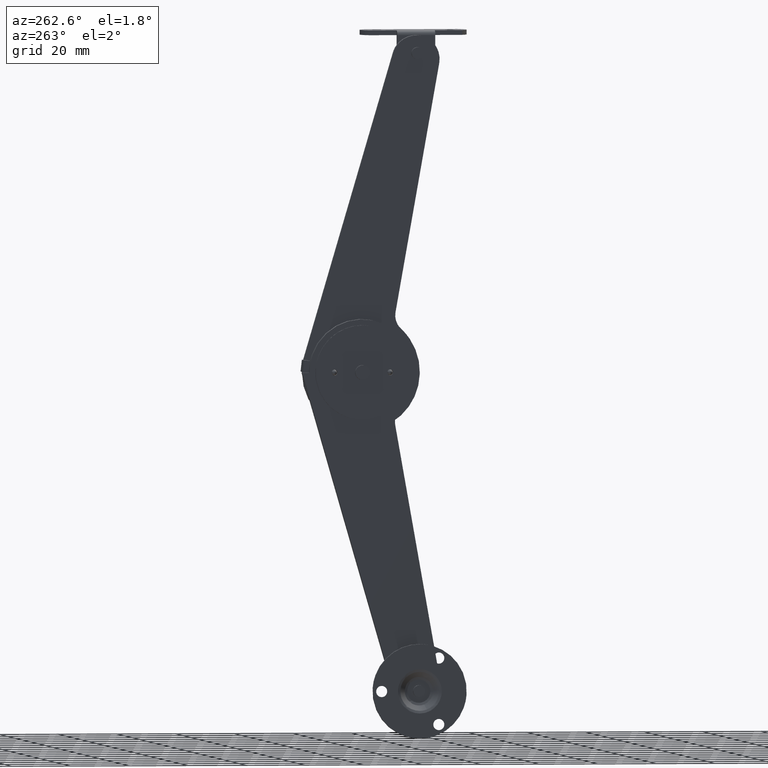
[diagram: clean part render]
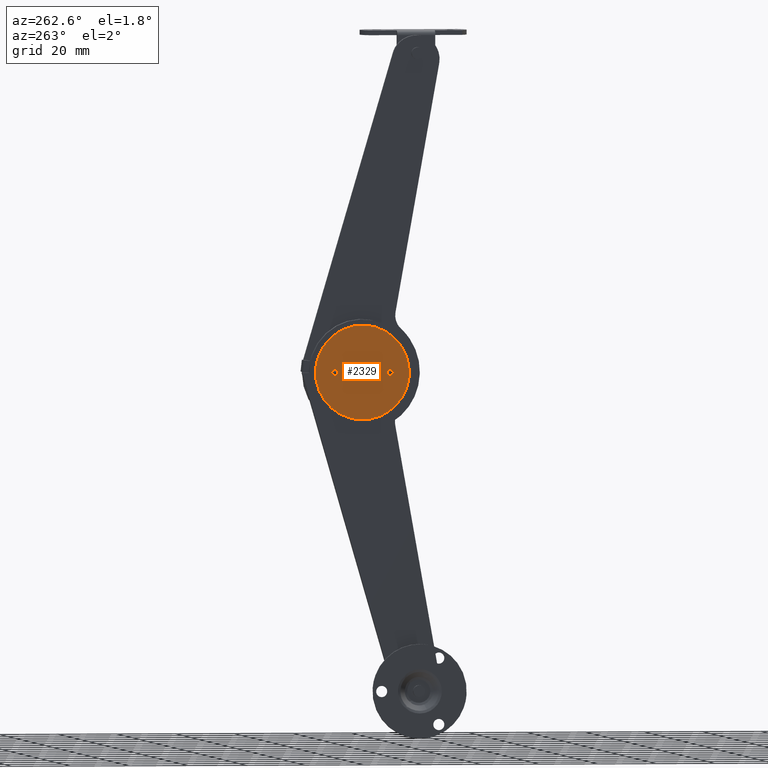
[diagram: same view with one face highlighted and labeled with its STEP entity id]
A machine part, auxiliary view. The second image highlights one B-rep face of the part: STEP entity #2329.
In plain terms, the highlighted face is a freeform B-spline surface patch.
Its self-contained STEP definition (entity closure, byte-faithful):
#1573=CARTESIAN_POINT('',(3.800003000000050,27.604370666721120,0.078459101500225));
#1574=VERTEX_POINT('',#1573);
#1580=CARTESIAN_POINT('',(3.800003000000050,28.601287999999951,0.999999999999975));
#1581=VERTEX_POINT('',#1580);
#1582=CARTESIAN_POINT('',(3.800003000000050,28.601287999999951,0.999999999999975));
#1583=CARTESIAN_POINT('',(3.800003000000050,27.676897519079755,0.999999999999975));
#1584=CARTESIAN_POINT('',(3.800003000000050,27.604370666721120,0.078459101500225));
#1592=(BOUNDED_CURVE()B_SPLINE_CURVE(2,(#1582,#1583,#1584),.UNSPECIFIED.,.F.,.U.)B_SPLINE_CURVE_WITH_KNOTS((3,3),(0.0,0.236331298647584),.UNSPECIFIED.)CURVE()GEOMETRIC_REPRESENTATION_ITEM()RATIONAL_B_SPLINE_CURVE((1.0,0.723120660930983,0.969723352028890))REPRESENTATION_ITEM(''));
#1593=EDGE_CURVE('',#1581,#1574,#1592,.T.);
#1595=CARTESIAN_POINT('',(3.800003000000050,29.598205333278781,-0.078459101500275));
#1596=VERTEX_POINT('',#1595);
#1597=CARTESIAN_POINT('',(3.800003000000050,29.598205333278781,-0.078459101500275));
#1598=CARTESIAN_POINT('',(3.800003000000050,29.601287999999954,-0.039290112806888));
#1599=CARTESIAN_POINT('',(3.800003000000050,29.601287999999951,-2.494522E-014));
#1600=CARTESIAN_POINT('',(3.800003000000050,29.601287999999951,0.999999999999975));
#1601=CARTESIAN_POINT('',(3.800003000000050,28.601287999999951,0.999999999999975));
#1609=(BOUNDED_CURVE()B_SPLINE_CURVE(2,(#1597,#1598,#1599,#1600,#1601),.UNSPECIFIED.,.F.,.U.)B_SPLINE_CURVE_WITH_KNOTS((3,2,3),(0.736331298647584,0.750000000000000,1.0),.UNSPECIFIED.)CURVE()GEOMETRIC_REPRESENTATION_ITEM()RATIONAL_B_SPLINE_CURVE((0.969723352028890,0.983986120255564,1.0,0.707106781186548,1.0))REPRESENTATION_ITEM(''));
#1610=EDGE_CURVE('',#1596,#1581,#1609,.T.);
#1686=CARTESIAN_POINT('',(3.800003000000050,28.601287999999951,-1.000000000000025));
#1687=VERTEX_POINT('',#1686);
#1688=CARTESIAN_POINT('',(3.800003000000050,28.601287999999951,-1.000000000000025));
#1689=CARTESIAN_POINT('',(3.800003000000049,29.525678480920142,-1.000000000000025));
#1690=CARTESIAN_POINT('',(3.800003000000050,29.598205333278781,-0.078459101500275));
#1698=(BOUNDED_CURVE()B_SPLINE_CURVE(2,(#1688,#1689,#1690),.UNSPECIFIED.,.F.,.U.)B_SPLINE_CURVE_WITH_KNOTS((3,3),(0.500000000000000,0.736331298647583),.UNSPECIFIED.)CURVE()GEOMETRIC_REPRESENTATION_ITEM()RATIONAL_B_SPLINE_CURVE((1.0,0.723120660930984,0.969723352028888))REPRESENTATION_ITEM(''));
#1699=EDGE_CURVE('',#1687,#1596,#1698,.T.);
#1701=CARTESIAN_POINT('',(3.800003000000050,27.604370666721120,0.078459101500225));
#1702=CARTESIAN_POINT('',(3.800003000000050,27.601287999999951,0.039290112806838));
#1703=CARTESIAN_POINT('',(3.800003000000050,27.601287999999951,-2.494522E-014));
#1704=CARTESIAN_POINT('',(3.800003000000050,27.601287999999958,-1.000000000000025));
#1705=CARTESIAN_POINT('',(3.800003000000050,28.601287999999951,-1.000000000000025));
#1713=(BOUNDED_CURVE()B_SPLINE_CURVE(2,(#1701,#1702,#1703,#1704,#1705),.UNSPECIFIED.,.F.,.U.)B_SPLINE_CURVE_WITH_KNOTS((3,2,3),(0.236331298647584,0.250000000000000,0.500000000000000),.UNSPECIFIED.)CURVE()GEOMETRIC_REPRESENTATION_ITEM()RATIONAL_B_SPLINE_CURVE((0.969723352028890,0.983986120255564,1.0,0.707106781186548,1.0))REPRESENTATION_ITEM(''));
#1714=EDGE_CURVE('',#1574,#1687,#1713,.T.);
#1761=CARTESIAN_POINT('',(3.800003000000050,10.594297526314310,0.118034235071934));
#1762=VERTEX_POINT('',#1761);
#1768=CARTESIAN_POINT('',(3.800003000000050,9.601288000000000,-1.000000000000026));
#1769=VERTEX_POINT('',#1768);
#1770=CARTESIAN_POINT('',(3.800003000000050,10.594297526314312,0.118034235071934));
#1771=CARTESIAN_POINT('',(3.800003000000050,10.601288000000002,0.059224120071475));
#1772=CARTESIAN_POINT('',(3.800003000000050,10.601288000000000,-2.611323E-014));
#1773=CARTESIAN_POINT('',(3.800003000000050,10.601288000000000,-1.000000000000026));
#1774=CARTESIAN_POINT('',(3.800003000000050,9.601288000000000,-1.000000000000026));
#1782=(BOUNDED_CURVE()B_SPLINE_CURVE(2,(#1770,#1771,#1772,#1773,#1774),.UNSPECIFIED.,.F.,.U.)B_SPLINE_CURVE_WITH_KNOTS((3,2,3),(0.229562473374316,0.250000000000000,0.500000000000000),.UNSPECIFIED.)CURVE()GEOMETRIC_REPRESENTATION_ITEM()RATIONAL_B_SPLINE_CURVE((0.956026753910876,0.976055948168071,1.0,0.707106781186548,1.0))REPRESENTATION_ITEM(''));
#1783=EDGE_CURVE('',#1762,#1769,#1782,.T.);
#1785=CARTESIAN_POINT('',(3.800003000000050,8.603153201615875,-0.061048540151942));
#1786=VERTEX_POINT('',#1785);
#1787=CARTESIAN_POINT('',(3.800003000000050,9.601288000000000,-1.000000000000026));
#1788=CARTESIAN_POINT('',(3.800003000000051,8.660581934259593,-1.000000000000026));
#1789=CARTESIAN_POINT('',(3.800003000000050,8.603153201615875,-0.061048540151942));
#1797=(BOUNDED_CURVE()B_SPLINE_CURVE(2,(#1787,#1788,#1789),.UNSPECIFIED.,.F.,.U.)B_SPLINE_CURVE_WITH_KNOTS((3,3),(0.500000000000000,0.739332962028627),.UNSPECIFIED.)CURVE()GEOMETRIC_REPRESENTATION_ITEM()RATIONAL_B_SPLINE_CURVE((1.0,0.719603993533111,0.976072041215970))REPRESENTATION_ITEM(''));
#1798=EDGE_CURVE('',#1769,#1786,#1797,.T.);
#1872=CARTESIAN_POINT('',(3.800003000000050,9.601288000000000,0.999999999999974));
#1873=VERTEX_POINT('',#1872);
#1874=CARTESIAN_POINT('',(3.800003000000050,8.603153201615875,-0.061048540151942));
#1875=CARTESIAN_POINT('',(3.800003000000050,8.601287999999999,-0.030552763917404));
#1876=CARTESIAN_POINT('',(3.800003000000050,8.601287999999999,-2.611323E-014));
#1877=CARTESIAN_POINT('',(3.800003000000050,8.601287999999999,0.999999999999974));
#1878=CARTESIAN_POINT('',(3.800003000000050,9.601288000000000,0.999999999999974));
#1886=(BOUNDED_CURVE()B_SPLINE_CURVE(2,(#1874,#1875,#1876,#1877,#1878),.UNSPECIFIED.,.F.,.U.)B_SPLINE_CURVE_WITH_KNOTS((3,2,3),(0.739332962028627,0.750000000000000,1.0),.UNSPECIFIED.)CURVE()GEOMETRIC_REPRESENTATION_ITEM()RATIONAL_B_SPLINE_CURVE((0.976072041215971,0.987502787653437,1.0,0.707106781186548,1.0))REPRESENTATION_ITEM(''));
#1887=EDGE_CURVE('',#1786,#1873,#1886,.T.);
#1889=CARTESIAN_POINT('',(3.800003000000050,9.601288000000000,0.999999999999974));
#1890=CARTESIAN_POINT('',(3.800003000000050,10.489462525203406,0.999999999999974));
#1891=CARTESIAN_POINT('',(3.800003000000050,10.594297526314310,0.118034235071934));
#1899=(BOUNDED_CURVE()B_SPLINE_CURVE(2,(#1889,#1890,#1891),.UNSPECIFIED.,.F.,.U.)B_SPLINE_CURVE_WITH_KNOTS((3,3),(0.0,0.229562473374316),.UNSPECIFIED.)CURVE()GEOMETRIC_REPRESENTATION_ITEM()RATIONAL_B_SPLINE_CURVE((1.0,0.731050833018477,0.956026753910876))REPRESENTATION_ITEM(''));
#1900=EDGE_CURVE('',#1873,#1762,#1899,.T.);
#1958=CARTESIAN_POINT('',(3.800003000000050,17.605911999594909,-0.117688646065025));
#1959=VERTEX_POINT('',#1958);
#1965=CARTESIAN_POINT('',(3.800003000000050,19.101287999999951,1.499999999999999));
#1966=VERTEX_POINT('',#1965);
#1967=CARTESIAN_POINT('',(3.800003000000050,17.605911999594909,-0.117688646065025));
#1968=CARTESIAN_POINT('',(3.800003000000050,17.601287999999943,-0.058935162996240));
#1969=CARTESIAN_POINT('',(3.800003000000050,17.601287999999951,-1.164919E-015));
#1970=CARTESIAN_POINT('',(3.800003000000050,17.601287999999951,1.500000000000000));
#1971=CARTESIAN_POINT('',(3.800003000000050,19.101287999999951,1.499999999999999));
#1979=(BOUNDED_CURVE()B_SPLINE_CURVE(2,(#1967,#1968,#1969,#1970,#1971),.UNSPECIFIED.,.F.,.U.)B_SPLINE_CURVE_WITH_KNOTS((3,2,3),(0.736331300065717,0.750000000000000,1.0),.UNSPECIFIED.)CURVE()GEOMETRIC_REPRESENTATION_ITEM()RATIONAL_B_SPLINE_CURVE((0.969723354988425,0.983986121917010,1.0,0.707106781186548,1.0))REPRESENTATION_ITEM(''));
#1980=EDGE_CURVE('',#1959,#1966,#1979,.T.);
#1982=CARTESIAN_POINT('',(3.800003000000050,20.596664000404989,0.117688646065023));
#1983=VERTEX_POINT('',#1982);
#1984=CARTESIAN_POINT('',(3.800003000000050,19.101287999999951,1.499999999999999));
#1985=CARTESIAN_POINT('',(3.800003000000050,20.487873732886428,1.499999999999999));
#1986=CARTESIAN_POINT('',(3.800003000000050,20.596664000404989,0.117688646065023));
#1994=(BOUNDED_CURVE()B_SPLINE_CURVE(2,(#1984,#1985,#1986),.UNSPECIFIED.,.F.,.U.)B_SPLINE_CURVE_WITH_KNOTS((3,3),(0.0,0.236331300065717),.UNSPECIFIED.)CURVE()GEOMETRIC_REPRESENTATION_ITEM()RATIONAL_B_SPLINE_CURVE((1.0,0.723120659269538,0.969723354988424))REPRESENTATION_ITEM(''));
#1995=EDGE_CURVE('',#1966,#1983,#1994,.T.);
#2041=CARTESIAN_POINT('',(3.800003000000050,19.101287999999951,-1.500000000000001));
#2042=VERTEX_POINT('',#2041);
#2043=CARTESIAN_POINT('',(3.800003000000050,20.596664000404996,0.117688646065023));
#2044=CARTESIAN_POINT('',(3.800003000000050,20.601287999999954,0.058935162996237));
#2045=CARTESIAN_POINT('',(3.800003000000050,20.601287999999951,-1.164919E-015));
#2046=CARTESIAN_POINT('',(3.800003000000050,20.601287999999947,-1.500000000000001));
#2047=CARTESIAN_POINT('',(3.800003000000050,19.101287999999951,-1.500000000000001));
#2055=(BOUNDED_CURVE()B_SPLINE_CURVE(2,(#2043,#2044,#2045,#2046,#2047),.UNSPECIFIED.,.F.,.U.)B_SPLINE_CURVE_WITH_KNOTS((3,2,3),(0.236331300065717,0.250000000000000,0.500000000000000),.UNSPECIFIED.)CURVE()GEOMETRIC_REPRESENTATION_ITEM()RATIONAL_B_SPLINE_CURVE((0.969723354988425,0.983986121917010,1.0,0.707106781186548,1.0))REPRESENTATION_ITEM(''));
#2056=EDGE_CURVE('',#1983,#2042,#2055,.T.);
#2058=CARTESIAN_POINT('',(3.800003000000050,19.101287999999951,-1.500000000000001));
#2059=CARTESIAN_POINT('',(3.800003000000049,17.714702267113463,-1.500000000000000));
#2060=CARTESIAN_POINT('',(3.800003000000050,17.605911999594905,-0.117688646065025));
#2068=(BOUNDED_CURVE()B_SPLINE_CURVE(2,(#2058,#2059,#2060),.UNSPECIFIED.,.F.,.U.)B_SPLINE_CURVE_WITH_KNOTS((3,3),(0.500000000000000,0.736331300065717),.UNSPECIFIED.)CURVE()GEOMETRIC_REPRESENTATION_ITEM()RATIONAL_B_SPLINE_CURVE((1.0,0.723120659269537,0.969723354988427))REPRESENTATION_ITEM(''));
#2069=EDGE_CURVE('',#2042,#1959,#2068,.T.);
#2123=CARTESIAN_POINT('',(3.800003000000050,35.051980339702922,1.255345531990710));
#2124=VERTEX_POINT('',#2123);
#2130=CARTESIAN_POINT('',(3.800003000000050,19.101303000000051,16.0));
#2131=VERTEX_POINT('',#2130);
#2132=CARTESIAN_POINT('',(3.800003000000050,19.101303000000051,16.0));
#2133=CARTESIAN_POINT('',(3.800003000000050,33.891550865889251,16.000000000000004));
#2134=CARTESIAN_POINT('',(3.800003000000050,35.051980339702922,1.255345531990710));
#2142=(BOUNDED_CURVE()B_SPLINE_CURVE(2,(#2132,#2133,#2134),.UNSPECIFIED.,.F.,.U.)B_SPLINE_CURVE_WITH_KNOTS((3,3),(0.0,0.236331300625347),.UNSPECIFIED.)CURVE()GEOMETRIC_REPRESENTATION_ITEM()RATIONAL_B_SPLINE_CURVE((1.0,0.723120658613889,0.969723356156332))REPRESENTATION_ITEM(''));
#2143=EDGE_CURVE('',#2131,#2124,#2142,.T.);
#2145=CARTESIAN_POINT('',(3.800003000000050,3.150625660297170,-1.255345531990711));
#2146=VERTEX_POINT('',#2145);
#2147=CARTESIAN_POINT('',(3.800003000000050,3.150625660297170,-1.255345531990711));
#2148=CARTESIAN_POINT('',(3.800003000000050,3.101303000000048,-0.628641712469503));
#2149=CARTESIAN_POINT('',(3.800003000000050,3.101303000000048,-1.164919E-015));
#2150=CARTESIAN_POINT('',(3.800003000000050,3.101303000000049,15.999999999999998));
#2151=CARTESIAN_POINT('',(3.800003000000050,19.101303000000051,16.0));
#2159=(BOUNDED_CURVE()B_SPLINE_CURVE(2,(#2147,#2148,#2149,#2150,#2151),.UNSPECIFIED.,.F.,.U.)B_SPLINE_CURVE_WITH_KNOTS((3,2,3),(0.736331300625347,0.750000000000000,1.0),.UNSPECIFIED.)CURVE()GEOMETRIC_REPRESENTATION_ITEM()RATIONAL_B_SPLINE_CURVE((0.969723356156331,0.983986122572658,1.0,0.707106781186548,1.0))REPRESENTATION_ITEM(''));
#2160=EDGE_CURVE('',#2146,#2131,#2159,.T.);
#2236=CARTESIAN_POINT('',(3.800003000000050,19.101303000000051,-16.0));
#2237=VERTEX_POINT('',#2236);
#2238=CARTESIAN_POINT('',(3.800003000000050,19.101303000000051,-16.0));
#2239=CARTESIAN_POINT('',(3.800003000000049,4.311055134110842,-16.000000000000007));
#2240=CARTESIAN_POINT('',(3.800003000000050,3.150625660297171,-1.255345531990711));
#2248=(BOUNDED_CURVE()B_SPLINE_CURVE(2,(#2238,#2239,#2240),.UNSPECIFIED.,.F.,.U.)B_SPLINE_CURVE_WITH_KNOTS((3,3),(0.500000000000000,0.736331300625348),.UNSPECIFIED.)CURVE()GEOMETRIC_REPRESENTATION_ITEM()RATIONAL_B_SPLINE_CURVE((1.0,0.723120658613889,0.969723356156332))REPRESENTATION_ITEM(''));
#2249=EDGE_CURVE('',#2237,#2146,#2248,.T.);
#2251=CARTESIAN_POINT('',(3.800003000000050,35.051980339702922,1.255345531990711));
#2252=CARTESIAN_POINT('',(3.800003000000050,35.101303000000058,0.628641712469502));
#2253=CARTESIAN_POINT('',(3.800003000000050,35.101303000000051,-1.164919E-015));
#2254=CARTESIAN_POINT('',(3.800003000000050,35.101303000000051,-15.999999999999998));
#2255=CARTESIAN_POINT('',(3.800003000000050,19.101303000000051,-16.0));
#2263=(BOUNDED_CURVE()B_SPLINE_CURVE(2,(#2251,#2252,#2253,#2254,#2255),.UNSPECIFIED.,.F.,.U.)B_SPLINE_CURVE_WITH_KNOTS((3,2,3),(0.236331300625347,0.250000000000000,0.500000000000000),.UNSPECIFIED.)CURVE()GEOMETRIC_REPRESENTATION_ITEM()RATIONAL_B_SPLINE_CURVE((0.969723356156331,0.983986122572658,1.0,0.707106781186548,1.0))REPRESENTATION_ITEM(''));
#2264=EDGE_CURVE('',#2124,#2237,#2263,.T.);
#2300=CARTESIAN_POINT('',(3.800003000000000,36.694819344022612,-17.598399937977788));
#2301=CARTESIAN_POINT('',(3.800003000000000,1.507786083772903,-17.598399937977788));
#2302=CARTESIAN_POINT('',(3.800003000000000,36.694819344022612,17.598400796284679));
#2303=CARTESIAN_POINT('',(3.800003000000000,1.507786083772903,17.598400796284679));
#2304=B_SPLINE_SURFACE_WITH_KNOTS('',1,1,((#2300,#2302),(#2301,#2303)),.UNSPECIFIED.,.F.,.F.,.U.,(2,2),(2,2),(0.0,35.187033260249713),(0.0,35.196800734262467),.UNSPECIFIED.);
#2305=ORIENTED_EDGE('',*,*,#2143,.T.);
#2306=ORIENTED_EDGE('',*,*,#2264,.T.);
#2307=ORIENTED_EDGE('',*,*,#2249,.T.);
#2308=ORIENTED_EDGE('',*,*,#2160,.T.);
#2309=EDGE_LOOP('',(#2305,#2306,#2307,#2308));
#2310=FACE_OUTER_BOUND('',#2309,.T.);
#2311=ORIENTED_EDGE('',*,*,#2069,.F.);
#2312=ORIENTED_EDGE('',*,*,#2056,.F.);
#2313=ORIENTED_EDGE('',*,*,#1995,.F.);
#2314=ORIENTED_EDGE('',*,*,#1980,.F.);
#2315=EDGE_LOOP('',(#2311,#2312,#2313,#2314));
#2316=FACE_BOUND('',#2315,.T.);
#2317=ORIENTED_EDGE('',*,*,#1798,.F.);
#2318=ORIENTED_EDGE('',*,*,#1783,.F.);
#2319=ORIENTED_EDGE('',*,*,#1900,.F.);
#2320=ORIENTED_EDGE('',*,*,#1887,.F.);
#2321=EDGE_LOOP('',(#2317,#2318,#2319,#2320));
#2322=FACE_BOUND('',#2321,.T.);
#2323=ORIENTED_EDGE('',*,*,#1699,.T.);
#2324=ORIENTED_EDGE('',*,*,#1610,.T.);
#2325=ORIENTED_EDGE('',*,*,#1593,.T.);
#2326=ORIENTED_EDGE('',*,*,#1714,.T.);
#2327=EDGE_LOOP('',(#2323,#2324,#2325,#2326));
#2328=FACE_BOUND('',#2327,.T.);
#2329=ADVANCED_FACE('',(#2310,#2316,#2322,#2328),#2304,.T.);